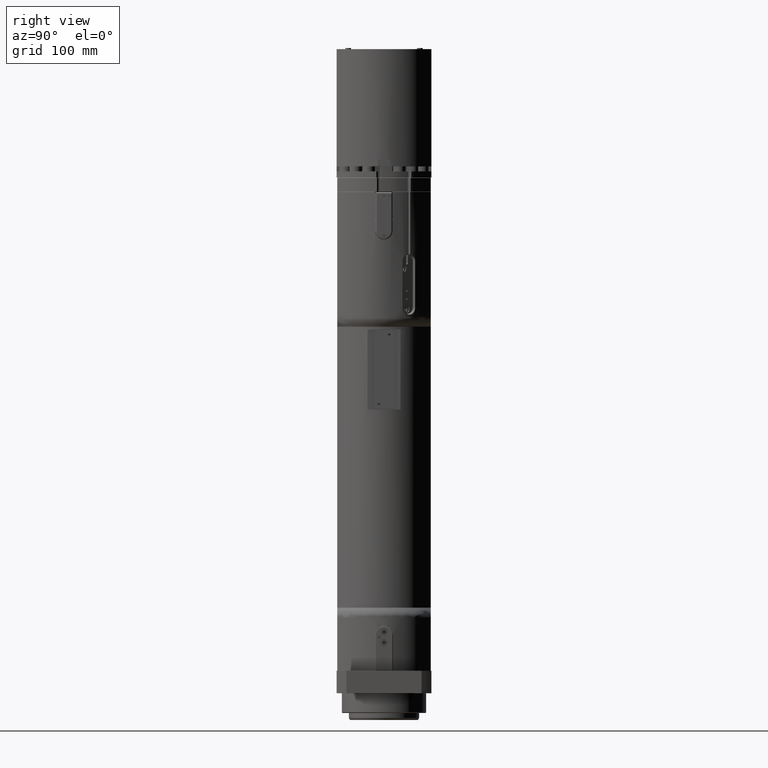
[diagram: clean part render]
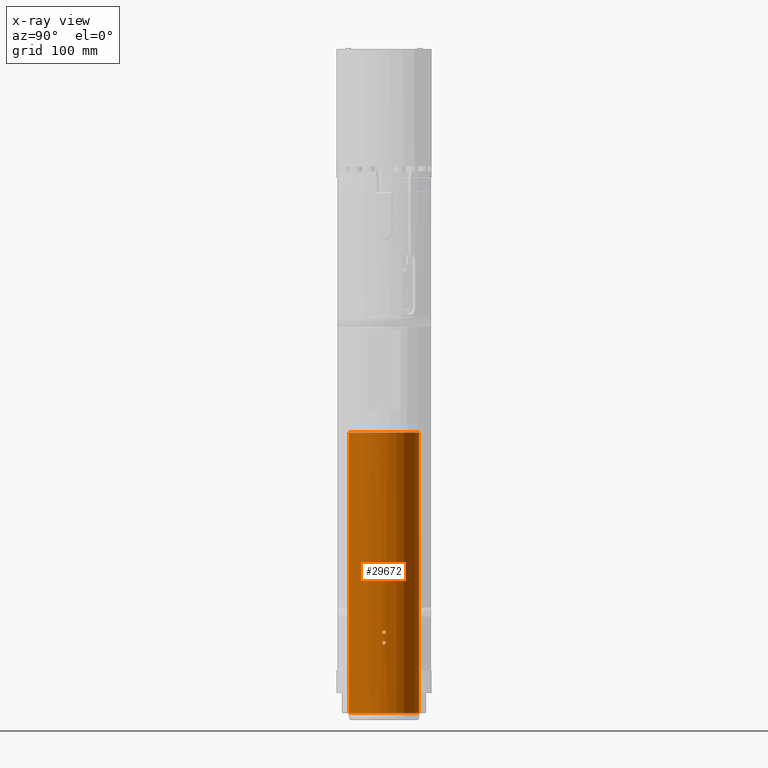
[diagram: x-ray — body ghosted, one internal face saturated and labeled with its STEP entity id]
A machine part, right view, then the same camera in x-ray: the body is ghosted and one INTERNAL B-rep face — a face not visible from any outside direction — is saturated and labeled: STEP entity #29672.
In plain terms, the highlighted cylindrical surface (bore or boss wall) has radius 50 mm, axis along (0, 0, 1).
Its self-contained STEP definition (entity closure, byte-faithful):
#1392=FACE_BOUND('',#3906,.T.);
#1393=FACE_BOUND('',#3907,.T.);
#1394=FACE_BOUND('',#3908,.T.);
#1395=FACE_BOUND('',#3909,.T.);
#1623=B_SPLINE_CURVE_WITH_KNOTS('',3,(#41541,#41542,#41543,#41544,#41545,
#41546,#41547,#41548,#41549,#41550,#41551,#41552,#41553,#41554,#41555,#41556,
#41557,#41558),.UNSPECIFIED.,.F.,.F.,(4,2,2,2,2,2,2,2,4),(0.,0.0926244522171295,
0.185248904434259,0.277873338353574,0.370497772272889,0.463122206192204,
0.555746640111519,0.648371092328649,0.740995544545778),.UNSPECIFIED.);
#1624=B_SPLINE_CURVE_WITH_KNOTS('',3,(#41559,#41560,#41561,#41562,#41563,
#41564,#41565,#41566,#41567,#41568,#41569,#41570,#41571,#41572,#41573,#41574,
#41575,#41576),.UNSPECIFIED.,.F.,.F.,(4,2,2,2,2,2,2,2,4),(0.740995544545778,
0.833619996762908,0.926244448980037,1.01886888289935,1.11149331681867,1.20411775073798,
1.2967421846573,1.38936663687443,1.48199108909156),.UNSPECIFIED.);
#1625=B_SPLINE_CURVE_WITH_KNOTS('',3,(#41579,#41580,#41581,#41582,#41583,
#41584,#41585,#41586,#41587,#41588,#41589,#41590,#41591,#41592,#41593,#41594,
#41595,#41596),.UNSPECIFIED.,.F.,.F.,(4,2,2,2,2,2,2,2,4),(0.,0.0926244522171295,
0.185248904434259,0.277873338353574,0.370497772272889,0.463122206192205,
0.55574664011152,0.648371092328649,0.740995544545779),.UNSPECIFIED.);
#1626=B_SPLINE_CURVE_WITH_KNOTS('',3,(#41597,#41598,#41599,#41600,#41601,
#41602,#41603,#41604,#41605,#41606,#41607,#41608,#41609,#41610,#41611,#41612,
#41613,#41614),.UNSPECIFIED.,.F.,.F.,(4,2,2,2,2,2,2,2,4),(0.740995544545779,
0.833619996762908,0.926244448980038,1.01886888289935,1.11149331681867,1.20411775073798,
1.2967421846573,1.38936663687443,1.48199108909156),.UNSPECIFIED.);
#1627=B_SPLINE_CURVE_WITH_KNOTS('',3,(#41617,#41618,#41619,#41620,#41621,
#41622,#41623,#41624,#41625,#41626,#41627,#41628,#41629,#41630,#41631,#41632,
#41633,#41634),.UNSPECIFIED.,.F.,.F.,(4,2,2,2,2,2,2,2,4),(0.,0.0926244522171295,
0.185248904434259,0.277873338353574,0.370497772272889,0.463122206192205,
0.55574664011152,0.648371092328649,0.740995544545779),.UNSPECIFIED.);
#1628=B_SPLINE_CURVE_WITH_KNOTS('',3,(#41635,#41636,#41637,#41638,#41639,
#41640,#41641,#41642,#41643,#41644,#41645,#41646,#41647,#41648,#41649,#41650,
#41651,#41652),.UNSPECIFIED.,.F.,.F.,(4,2,2,2,2,2,2,2,4),(0.740995544545779,
0.833619996762908,0.926244448980038,1.01886888289935,1.11149331681867,1.20411775073798,
1.2967421846573,1.38936663687443,1.48199108909156),.UNSPECIFIED.);
#1629=B_SPLINE_CURVE_WITH_KNOTS('',3,(#41655,#41656,#41657,#41658,#41659,
#41660,#41661,#41662,#41663,#41664,#41665,#41666,#41667,#41668,#41669,#41670,
#41671,#41672),.UNSPECIFIED.,.F.,.F.,(4,2,2,2,2,2,2,2,4),(0.,0.0926244522171295,
0.185248904434259,0.277873338353574,0.370497772272889,0.463122206192204,
0.555746640111519,0.648371092328649,0.740995544545778),.UNSPECIFIED.);
#1630=B_SPLINE_CURVE_WITH_KNOTS('',3,(#41673,#41674,#41675,#41676,#41677,
#41678,#41679,#41680,#41681,#41682,#41683,#41684,#41685,#41686,#41687,#41688,
#41689,#41690),.UNSPECIFIED.,.F.,.F.,(4,2,2,2,2,2,2,2,4),(0.740995544545778,
0.833619996762908,0.926244448980037,1.01886888289935,1.11149331681867,1.20411775073798,
1.2967421846573,1.38936663687443,1.48199108909156),.UNSPECIFIED.);
#2218=FACE_OUTER_BOUND('',#3905,.T.);
#3905=EDGE_LOOP('',(#19067,#19068,#19069,#19070));
#3906=EDGE_LOOP('',(#19071,#19072));
#3907=EDGE_LOOP('',(#19073,#19074));
#3908=EDGE_LOOP('',(#19075,#19076));
#3909=EDGE_LOOP('',(#19077,#19078));
#5823=LINE('',#41537,#8403);
#8403=VECTOR('',#33969,50.);
#10983=CIRCLE('',#31469,50.);
#10984=CIRCLE('',#31470,50.);
#12002=VERTEX_POINT('',#41534);
#12003=VERTEX_POINT('',#41536);
#12004=VERTEX_POINT('',#41539);
#12005=VERTEX_POINT('',#41540);
#12006=VERTEX_POINT('',#41577);
#12007=VERTEX_POINT('',#41578);
#12008=VERTEX_POINT('',#41615);
#12009=VERTEX_POINT('',#41616);
#12010=VERTEX_POINT('',#41653);
#12011=VERTEX_POINT('',#41654);
#14792=EDGE_CURVE('',#12002,#12002,#10983,.T.);
#14793=EDGE_CURVE('',#12002,#12003,#5823,.T.);
#14794=EDGE_CURVE('',#12003,#12003,#10984,.T.);
#14795=EDGE_CURVE('',#12004,#12005,#1623,.T.);
#14796=EDGE_CURVE('',#12005,#12004,#1624,.T.);
#14797=EDGE_CURVE('',#12006,#12007,#1625,.T.);
#14798=EDGE_CURVE('',#12007,#12006,#1626,.T.);
#14799=EDGE_CURVE('',#12008,#12009,#1627,.T.);
#14800=EDGE_CURVE('',#12009,#12008,#1628,.T.);
#14801=EDGE_CURVE('',#12010,#12011,#1629,.T.);
#14802=EDGE_CURVE('',#12011,#12010,#1630,.T.);
#19067=ORIENTED_EDGE('',*,*,#14792,.F.);
#19068=ORIENTED_EDGE('',*,*,#14793,.T.);
#19069=ORIENTED_EDGE('',*,*,#14794,.F.);
#19070=ORIENTED_EDGE('',*,*,#14793,.F.);
#19071=ORIENTED_EDGE('',*,*,#14795,.T.);
#19072=ORIENTED_EDGE('',*,*,#14796,.T.);
#19073=ORIENTED_EDGE('',*,*,#14797,.T.);
#19074=ORIENTED_EDGE('',*,*,#14798,.T.);
#19075=ORIENTED_EDGE('',*,*,#14799,.T.);
#19076=ORIENTED_EDGE('',*,*,#14800,.T.);
#19077=ORIENTED_EDGE('',*,*,#14801,.T.);
#19078=ORIENTED_EDGE('',*,*,#14802,.T.);
#27617=CYLINDRICAL_SURFACE('',#31468,50.);
#29672=ADVANCED_FACE('',(#2218,#1392,#1393,#1394,#1395),#27617,.F.);
#31468=AXIS2_PLACEMENT_3D('',#41533,#33965,#33966);
#31469=AXIS2_PLACEMENT_3D('',#41535,#33967,#33968);
#31470=AXIS2_PLACEMENT_3D('',#41538,#33970,#33971);
#33965=DIRECTION('center_axis',(0.,0.,1.));
#33966=DIRECTION('ref_axis',(-1.,0.,0.));
#33967=DIRECTION('center_axis',(0.,0.,1.));
#33968=DIRECTION('ref_axis',(-1.,0.,0.));
#33969=DIRECTION('',(0.,0.,1.));
#33970=DIRECTION('center_axis',(0.,0.,-1.));
#33971=DIRECTION('ref_axis',(1.,0.,0.));
#41533=CARTESIAN_POINT('Origin',(0.,0.,32.));
#41534=CARTESIAN_POINT('',(50.,6.12323399573677E-15,-28.));
#41535=CARTESIAN_POINT('Origin',(0.,0.,-28.));
#41536=CARTESIAN_POINT('',(50.,-6.12323399573677E-15,371.));
#41537=CARTESIAN_POINT('',(50.,6.12323399573677E-15,32.));
#41538=CARTESIAN_POINT('Origin',(0.,0.,371.));
#41539=CARTESIAN_POINT('',(-2.4585,-49.9395212006483,72.));
#41540=CARTESIAN_POINT('',(2.4585,-49.9395212006483,72.));
#41541=CARTESIAN_POINT('Ctrl Pts',(-2.4585,-49.9395212006483,72.));
#41542=CARTESIAN_POINT('Ctrl Pts',(-2.4585,-49.9395212006483,71.6912518259429));
#41543=CARTESIAN_POINT('Ctrl Pts',(-2.39678641399836,-49.9426790125544,
71.3619581177303));
#41544=CARTESIAN_POINT('Ctrl Pts',(-2.14587200376796,-49.9540889757019,
70.7562492530205));
#41545=CARTESIAN_POINT('Ctrl Pts',(-1.95667392111061,-49.9621768812145,
70.4798298780163));
#41546=CARTESIAN_POINT('Ctrl Pts',(-1.52017016509896,-49.9773626174253,
70.0433261220047));
#41547=CARTESIAN_POINT('Ctrl Pts',(-1.24375077037576,-49.9854462552708,
69.8541280072253));
#41548=CARTESIAN_POINT('Ctrl Pts',(-0.63804184368142,-49.9968464597779,
69.603213568715));
#41549=CARTESIAN_POINT('Ctrl Pts',(-0.308748113064384,-50.,69.5415));
#41550=CARTESIAN_POINT('Ctrl Pts',(0.308748113064383,-50.,69.5415));
#41551=CARTESIAN_POINT('Ctrl Pts',(0.638041843681419,-49.9968464597779,
69.603213568715));
#41552=CARTESIAN_POINT('Ctrl Pts',(1.24375077037576,-49.9854462552708,69.8541280072253));
#41553=CARTESIAN_POINT('Ctrl Pts',(1.52017016509896,-49.9773626174253,70.0433261220047));
#41554=CARTESIAN_POINT('Ctrl Pts',(1.95667392111061,-49.9621768812145,70.4798298780163));
#41555=CARTESIAN_POINT('Ctrl Pts',(2.14587200376796,-49.9540889757019,70.7562492530205));
#41556=CARTESIAN_POINT('Ctrl Pts',(2.39678641399836,-49.9426790125544,71.3619581177303));
#41557=CARTESIAN_POINT('Ctrl Pts',(2.4585,-49.9395212006483,71.6912518259429));
#41558=CARTESIAN_POINT('Ctrl Pts',(2.4585,-49.9395212006483,72.));
#41559=CARTESIAN_POINT('Ctrl Pts',(2.4585,-49.9395212006483,72.));
#41560=CARTESIAN_POINT('Ctrl Pts',(2.4585,-49.9395212006483,72.3087481740571));
#41561=CARTESIAN_POINT('Ctrl Pts',(2.39678641399837,-49.9426790125544,72.6380418822697));
#41562=CARTESIAN_POINT('Ctrl Pts',(2.14587200376797,-49.9540889757019,73.2437507469795));
#41563=CARTESIAN_POINT('Ctrl Pts',(1.95667392111061,-49.9621768812145,73.5201701219837));
#41564=CARTESIAN_POINT('Ctrl Pts',(1.52017016509896,-49.9773626174253,73.9566738779953));
#41565=CARTESIAN_POINT('Ctrl Pts',(1.24375077037576,-49.9854462552708,74.1458719927747));
#41566=CARTESIAN_POINT('Ctrl Pts',(0.638041843681425,-49.9968464597779,
74.396786431285));
#41567=CARTESIAN_POINT('Ctrl Pts',(0.308748113064384,-50.,74.4585));
#41568=CARTESIAN_POINT('Ctrl Pts',(-0.308748113064383,-50.,74.4585));
#41569=CARTESIAN_POINT('Ctrl Pts',(-0.63804184368142,-49.9968464597779,
74.396786431285));
#41570=CARTESIAN_POINT('Ctrl Pts',(-1.24375077037576,-49.9854462552708,
74.1458719927747));
#41571=CARTESIAN_POINT('Ctrl Pts',(-1.52017016509896,-49.9773626174253,
73.9566738779953));
#41572=CARTESIAN_POINT('Ctrl Pts',(-1.95667392111061,-49.9621768812145,
73.5201701219837));
#41573=CARTESIAN_POINT('Ctrl Pts',(-2.14587200376796,-49.9540889757019,
73.2437507469796));
#41574=CARTESIAN_POINT('Ctrl Pts',(-2.39678641399836,-49.9426790125544,
72.6380418822697));
#41575=CARTESIAN_POINT('Ctrl Pts',(-2.4585,-49.9395212006483,72.3087481740571));
#41576=CARTESIAN_POINT('Ctrl Pts',(-2.4585,-49.9395212006483,72.));
#41577=CARTESIAN_POINT('',(-2.4585,-49.9395212006483,87.));
#41578=CARTESIAN_POINT('',(2.4585,-49.9395212006483,87.));
#41579=CARTESIAN_POINT('Ctrl Pts',(-2.4585,-49.9395212006483,87.));
#41580=CARTESIAN_POINT('Ctrl Pts',(-2.4585,-49.9395212006483,86.6912518259429));
#41581=CARTESIAN_POINT('Ctrl Pts',(-2.39678641399836,-49.9426790125544,
86.3619581177303));
#41582=CARTESIAN_POINT('Ctrl Pts',(-2.14587200376796,-49.9540889757019,
85.7562492530205));
#41583=CARTESIAN_POINT('Ctrl Pts',(-1.95667392111061,-49.9621768812145,
85.4798298780163));
#41584=CARTESIAN_POINT('Ctrl Pts',(-1.52017016509896,-49.9773626174253,
85.0433261220047));
#41585=CARTESIAN_POINT('Ctrl Pts',(-1.24375077037575,-49.9854462552708,
84.8541280072253));
#41586=CARTESIAN_POINT('Ctrl Pts',(-0.638041843681409,-49.9968464597779,
84.603213568715));
#41587=CARTESIAN_POINT('Ctrl Pts',(-0.308748113064384,-50.,84.5415));
#41588=CARTESIAN_POINT('Ctrl Pts',(0.308748113064384,-50.,84.5415));
#41589=CARTESIAN_POINT('Ctrl Pts',(0.63804184368141,-49.9968464597779,84.603213568715));
#41590=CARTESIAN_POINT('Ctrl Pts',(1.24375077037575,-49.9854462552708,84.8541280072253));
#41591=CARTESIAN_POINT('Ctrl Pts',(1.52017016509896,-49.9773626174253,85.0433261220047));
#41592=CARTESIAN_POINT('Ctrl Pts',(1.95667392111061,-49.9621768812145,85.4798298780163));
#41593=CARTESIAN_POINT('Ctrl Pts',(2.14587200376796,-49.9540889757019,85.7562492530205));
#41594=CARTESIAN_POINT('Ctrl Pts',(2.39678641399836,-49.9426790125544,86.3619581177303));
#41595=CARTESIAN_POINT('Ctrl Pts',(2.4585,-49.9395212006483,86.6912518259429));
#41596=CARTESIAN_POINT('Ctrl Pts',(2.4585,-49.9395212006483,87.));
#41597=CARTESIAN_POINT('Ctrl Pts',(2.4585,-49.9395212006483,87.));
#41598=CARTESIAN_POINT('Ctrl Pts',(2.4585,-49.9395212006483,87.3087481740571));
#41599=CARTESIAN_POINT('Ctrl Pts',(2.39678641399837,-49.9426790125544,87.6380418822697));
#41600=CARTESIAN_POINT('Ctrl Pts',(2.14587200376797,-49.9540889757019,88.2437507469795));
#41601=CARTESIAN_POINT('Ctrl Pts',(1.95667392111061,-49.9621768812145,88.5201701219837));
#41602=CARTESIAN_POINT('Ctrl Pts',(1.52017016509896,-49.9773626174253,88.9566738779953));
#41603=CARTESIAN_POINT('Ctrl Pts',(1.24375077037575,-49.9854462552708,89.1458719927747));
#41604=CARTESIAN_POINT('Ctrl Pts',(0.638041843681409,-49.9968464597779,
89.396786431285));
#41605=CARTESIAN_POINT('Ctrl Pts',(0.308748113064384,-50.,89.4585));
#41606=CARTESIAN_POINT('Ctrl Pts',(-0.308748113064384,-50.,89.4585));
#41607=CARTESIAN_POINT('Ctrl Pts',(-0.638041843681411,-49.9968464597779,
89.396786431285));
#41608=CARTESIAN_POINT('Ctrl Pts',(-1.24375077037575,-49.9854462552708,
89.1458719927747));
#41609=CARTESIAN_POINT('Ctrl Pts',(-1.52017016509896,-49.9773626174253,
88.9566738779953));
#41610=CARTESIAN_POINT('Ctrl Pts',(-1.95667392111061,-49.9621768812145,
88.5201701219837));
#41611=CARTESIAN_POINT('Ctrl Pts',(-2.14587200376796,-49.9540889757019,
88.2437507469795));
#41612=CARTESIAN_POINT('Ctrl Pts',(-2.39678641399836,-49.9426790125544,
87.6380418822697));
#41613=CARTESIAN_POINT('Ctrl Pts',(-2.4585,-49.9395212006483,87.3087481740571));
#41614=CARTESIAN_POINT('Ctrl Pts',(-2.4585,-49.9395212006483,87.));
#41615=CARTESIAN_POINT('',(-2.4585,49.9395212006483,87.));
#41616=CARTESIAN_POINT('',(2.4585,49.9395212006483,87.));
#41617=CARTESIAN_POINT('Ctrl Pts',(-2.4585,49.9395212006483,87.));
#41618=CARTESIAN_POINT('Ctrl Pts',(-2.4585,49.9395212006483,87.3087481740571));
#41619=CARTESIAN_POINT('Ctrl Pts',(-2.39678641399836,49.9426790125544,87.6380418822697));
#41620=CARTESIAN_POINT('Ctrl Pts',(-2.14587200376796,49.9540889757019,88.2437507469795));
#41621=CARTESIAN_POINT('Ctrl Pts',(-1.95667392111061,49.9621768812145,88.5201701219837));
#41622=CARTESIAN_POINT('Ctrl Pts',(-1.52017016509896,49.9773626174253,88.9566738779953));
#41623=CARTESIAN_POINT('Ctrl Pts',(-1.24375077037576,49.9854462552708,89.1458719927747));
#41624=CARTESIAN_POINT('Ctrl Pts',(-0.638041843681422,49.9968464597779,
89.396786431285));
#41625=CARTESIAN_POINT('Ctrl Pts',(-0.308748113064384,50.,89.4585));
#41626=CARTESIAN_POINT('Ctrl Pts',(0.308748113064384,50.,89.4585));
#41627=CARTESIAN_POINT('Ctrl Pts',(0.63804184368141,49.9968464597779,89.396786431285));
#41628=CARTESIAN_POINT('Ctrl Pts',(1.24375077037575,49.9854462552708,89.1458719927747));
#41629=CARTESIAN_POINT('Ctrl Pts',(1.52017016509896,49.9773626174253,88.9566738779953));
#41630=CARTESIAN_POINT('Ctrl Pts',(1.95667392111061,49.9621768812145,88.5201701219837));
#41631=CARTESIAN_POINT('Ctrl Pts',(2.14587200376796,49.9540889757019,88.2437507469795));
#41632=CARTESIAN_POINT('Ctrl Pts',(2.39678641399836,49.9426790125544,87.6380418822697));
#41633=CARTESIAN_POINT('Ctrl Pts',(2.4585,49.9395212006483,87.3087481740571));
#41634=CARTESIAN_POINT('Ctrl Pts',(2.4585,49.9395212006483,87.));
#41635=CARTESIAN_POINT('Ctrl Pts',(2.4585,49.9395212006483,87.));
#41636=CARTESIAN_POINT('Ctrl Pts',(2.4585,49.9395212006483,86.6912518259429));
#41637=CARTESIAN_POINT('Ctrl Pts',(2.39678641399836,49.9426790125544,86.3619581177303));
#41638=CARTESIAN_POINT('Ctrl Pts',(2.14587200376795,49.9540889757019,85.7562492530205));
#41639=CARTESIAN_POINT('Ctrl Pts',(1.95667392111061,49.9621768812145,85.4798298780163));
#41640=CARTESIAN_POINT('Ctrl Pts',(1.52017016509896,49.9773626174253,85.0433261220047));
#41641=CARTESIAN_POINT('Ctrl Pts',(1.24375077037575,49.9854462552708,84.8541280072253));
#41642=CARTESIAN_POINT('Ctrl Pts',(0.638041843681409,49.9968464597779,84.603213568715));
#41643=CARTESIAN_POINT('Ctrl Pts',(0.308748113064384,50.,84.5415));
#41644=CARTESIAN_POINT('Ctrl Pts',(-0.308748113064384,50.,84.5415));
#41645=CARTESIAN_POINT('Ctrl Pts',(-0.638041843681411,49.9968464597779,
84.603213568715));
#41646=CARTESIAN_POINT('Ctrl Pts',(-1.24375077037575,49.9854462552708,84.8541280072253));
#41647=CARTESIAN_POINT('Ctrl Pts',(-1.52017016509896,49.9773626174253,85.0433261220047));
#41648=CARTESIAN_POINT('Ctrl Pts',(-1.95667392111061,49.9621768812145,85.4798298780163));
#41649=CARTESIAN_POINT('Ctrl Pts',(-2.14587200376796,49.9540889757019,85.7562492530205));
#41650=CARTESIAN_POINT('Ctrl Pts',(-2.39678641399836,49.9426790125544,86.3619581177303));
#41651=CARTESIAN_POINT('Ctrl Pts',(-2.4585,49.9395212006483,86.6912518259429));
#41652=CARTESIAN_POINT('Ctrl Pts',(-2.4585,49.9395212006483,87.));
#41653=CARTESIAN_POINT('',(-2.4585,49.9395212006483,72.));
#41654=CARTESIAN_POINT('',(2.4585,49.9395212006483,72.));
#41655=CARTESIAN_POINT('Ctrl Pts',(-2.4585,49.9395212006483,72.));
#41656=CARTESIAN_POINT('Ctrl Pts',(-2.4585,49.9395212006483,72.3087481740571));
#41657=CARTESIAN_POINT('Ctrl Pts',(-2.39678641399836,49.9426790125544,72.6380418822697));
#41658=CARTESIAN_POINT('Ctrl Pts',(-2.14587200376796,49.9540889757019,73.2437507469796));
#41659=CARTESIAN_POINT('Ctrl Pts',(-1.95667392111061,49.9621768812145,73.5201701219837));
#41660=CARTESIAN_POINT('Ctrl Pts',(-1.52017016509896,49.9773626174253,73.9566738779953));
#41661=CARTESIAN_POINT('Ctrl Pts',(-1.24375077037576,49.9854462552708,74.1458719927747));
#41662=CARTESIAN_POINT('Ctrl Pts',(-0.63804184368142,49.9968464597779,74.396786431285));
#41663=CARTESIAN_POINT('Ctrl Pts',(-0.308748113064384,50.,74.4585));
#41664=CARTESIAN_POINT('Ctrl Pts',(0.308748113064383,50.,74.4585));
#41665=CARTESIAN_POINT('Ctrl Pts',(0.638041843681419,49.9968464597779,74.396786431285));
#41666=CARTESIAN_POINT('Ctrl Pts',(1.24375077037576,49.9854462552708,74.1458719927747));
#41667=CARTESIAN_POINT('Ctrl Pts',(1.52017016509896,49.9773626174253,73.9566738779953));
#41668=CARTESIAN_POINT('Ctrl Pts',(1.95667392111061,49.9621768812145,73.5201701219837));
#41669=CARTESIAN_POINT('Ctrl Pts',(2.14587200376796,49.9540889757019,73.2437507469796));
#41670=CARTESIAN_POINT('Ctrl Pts',(2.39678641399836,49.9426790125544,72.6380418822697));
#41671=CARTESIAN_POINT('Ctrl Pts',(2.4585,49.9395212006483,72.3087481740571));
#41672=CARTESIAN_POINT('Ctrl Pts',(2.4585,49.9395212006483,72.));
#41673=CARTESIAN_POINT('Ctrl Pts',(2.4585,49.9395212006483,72.));
#41674=CARTESIAN_POINT('Ctrl Pts',(2.4585,49.9395212006483,71.6912518259429));
#41675=CARTESIAN_POINT('Ctrl Pts',(2.39678641399836,49.9426790125544,71.3619581177303));
#41676=CARTESIAN_POINT('Ctrl Pts',(2.14587200376796,49.9540889757019,70.7562492530205));
#41677=CARTESIAN_POINT('Ctrl Pts',(1.95667392111061,49.9621768812145,70.4798298780163));
#41678=CARTESIAN_POINT('Ctrl Pts',(1.52017016509896,49.9773626174253,70.0433261220047));
#41679=CARTESIAN_POINT('Ctrl Pts',(1.24375077037575,49.9854462552708,69.8541280072253));
#41680=CARTESIAN_POINT('Ctrl Pts',(0.63804184368141,49.9968464597779,69.603213568715));
#41681=CARTESIAN_POINT('Ctrl Pts',(0.308748113064384,50.,69.5415));
#41682=CARTESIAN_POINT('Ctrl Pts',(-0.308748113064383,50.,69.5415));
#41683=CARTESIAN_POINT('Ctrl Pts',(-0.63804184368142,49.9968464597779,69.603213568715));
#41684=CARTESIAN_POINT('Ctrl Pts',(-1.24375077037576,49.9854462552708,69.8541280072253));
#41685=CARTESIAN_POINT('Ctrl Pts',(-1.52017016509896,49.9773626174253,70.0433261220047));
#41686=CARTESIAN_POINT('Ctrl Pts',(-1.95667392111061,49.9621768812145,70.4798298780163));
#41687=CARTESIAN_POINT('Ctrl Pts',(-2.14587200376796,49.9540889757019,70.7562492530205));
#41688=CARTESIAN_POINT('Ctrl Pts',(-2.39678641399836,49.9426790125544,71.3619581177303));
#41689=CARTESIAN_POINT('Ctrl Pts',(-2.4585,49.9395212006483,71.6912518259429));
#41690=CARTESIAN_POINT('Ctrl Pts',(-2.4585,49.9395212006483,72.));